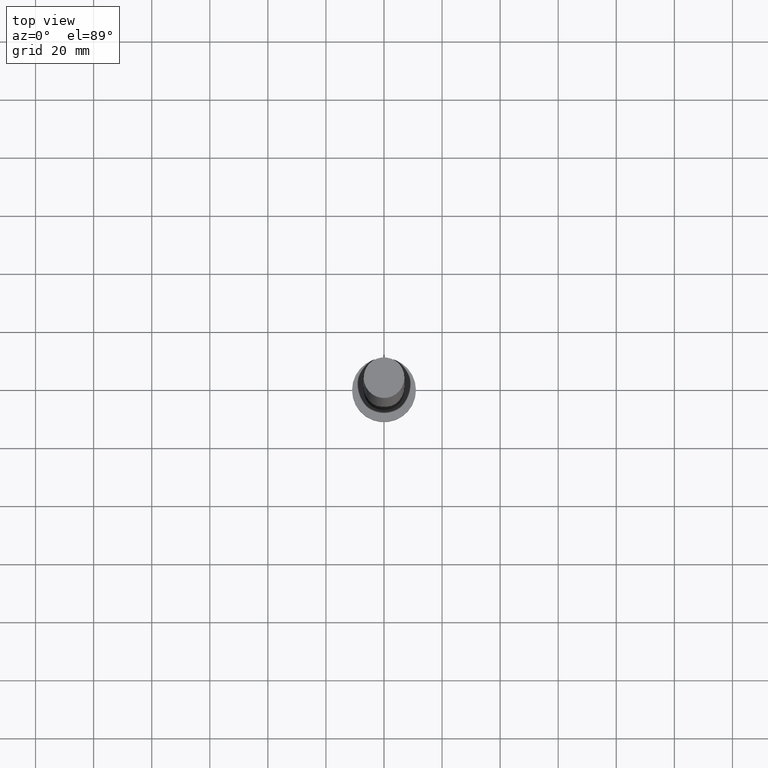
[diagram: clean part render]
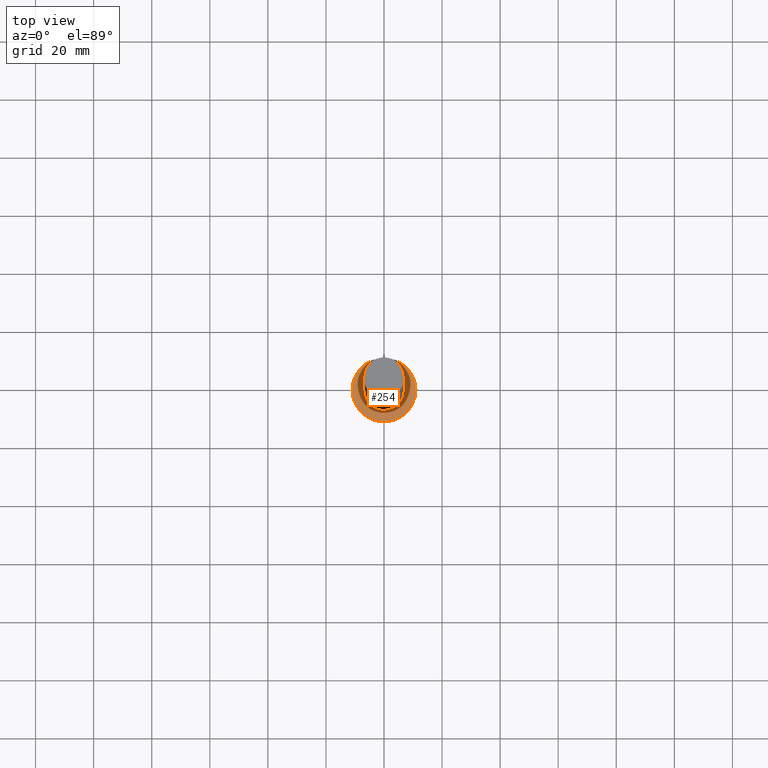
[diagram: same view with one face highlighted and labeled with its STEP entity id]
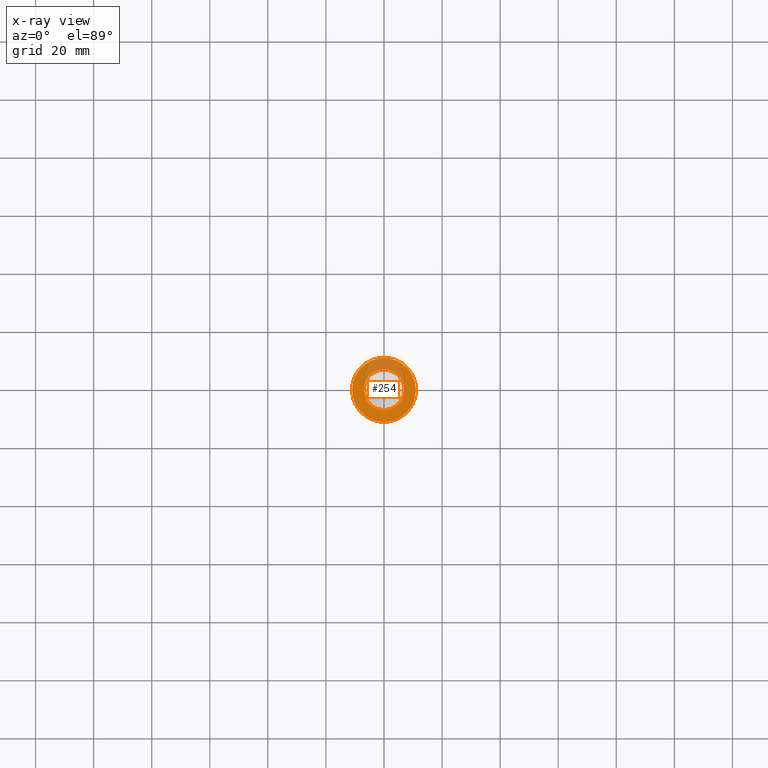
[diagram: x-ray of the same camera — body ghosted, the highlighted face saturated]
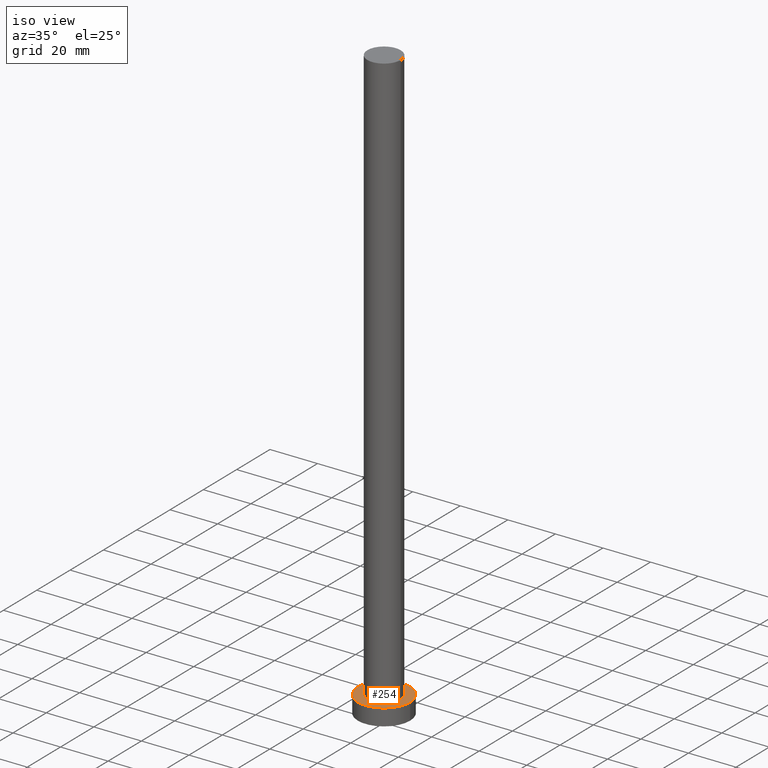
[diagram: same view with one face highlighted and labeled with its STEP entity id]
A machine part, top view. The second image highlights one B-rep face of the part: STEP entity #254.
The next image is the same camera in x-ray: the body ghosted, the highlighted face saturated — about 26% of this face is hidden behind the body in this view.
A second angle (iso view) of the same face is appended — the face is thin or edge-on in the first view.
In plain terms, the highlighted planar face has unit normal (0, 0, 1).
Its self-contained STEP definition (entity closure, byte-faithful):
#8 = CARTESIAN_POINT ( 'NONE',  ( -7.000000000000000000, 0.000000000000000000, 7.000000000000000000 ) ) ;
#9 = CARTESIAN_POINT ( 'NONE',  ( 0.000000000000000000, 0.000000000000000000, 7.000000000000000000 ) ) ;
#10 = DIRECTION ( 'NONE',  ( 0.000000000000000000, 0.000000000000000000, 1.000000000000000000 ) ) ;
#16 = PLANE ( 'NONE',  #56 ) ;
#24 = ORIENTED_EDGE ( 'NONE', *, *, #27, .F. ) ;
#27 = EDGE_CURVE ( 'NONE', #142, #210, #53, .T. ) ;
#28 = CARTESIAN_POINT ( 'NONE',  ( -11.00000000000000000, 0.000000000000000000, 7.000000000000000000 ) ) ;
#31 = AXIS2_PLACEMENT_3D ( 'NONE', #9, #160, #143 ) ;
#53 = CIRCLE ( 'NONE', #234, 7.000000000000000000 ) ;
#56 = AXIS2_PLACEMENT_3D ( 'NONE', #213, #243, #97 ) ;
#61 = VERTEX_POINT ( 'NONE', #250 ) ;
#63 = CARTESIAN_POINT ( 'NONE',  ( 0.000000000000000000, 0.000000000000000000, 7.000000000000000000 ) ) ;
#70 = ORIENTED_EDGE ( 'NONE', *, *, #92, .T. ) ;
#74 = EDGE_CURVE ( 'NONE', #210, #142, #96, .T. ) ;
#77 = FACE_BOUND ( 'NONE', #244, .T. ) ;
#92 = EDGE_CURVE ( 'NONE', #61, #205, #140, .T. ) ;
#96 = CIRCLE ( 'NONE', #31, 7.000000000000000000 ) ;
#97 = DIRECTION ( 'NONE',  ( 1.000000000000000000, 0.000000000000000000, -0.000000000000000000 ) ) ;
#111 = DIRECTION ( 'NONE',  ( 1.000000000000000000, 0.000000000000000000, 0.000000000000000000 ) ) ;
#120 = ORIENTED_EDGE ( 'NONE', *, *, #217, .T. ) ;
#125 = DIRECTION ( 'NONE',  ( 1.000000000000000000, 0.000000000000000000, 0.000000000000000000 ) ) ;
#140 = CIRCLE ( 'NONE', #173, 11.00000000000000000 ) ;
#142 = VERTEX_POINT ( 'NONE', #156 ) ;
#143 = DIRECTION ( 'NONE',  ( 1.000000000000000000, 0.000000000000000000, 0.000000000000000000 ) ) ;
#145 = DIRECTION ( 'NONE',  ( 1.000000000000000000, 0.000000000000000000, 0.000000000000000000 ) ) ;
#156 = CARTESIAN_POINT ( 'NONE',  ( 7.000000000000000000, 8.572527594031473190E-16, 7.000000000000000000 ) ) ;
#160 = DIRECTION ( 'NONE',  ( 0.000000000000000000, 0.000000000000000000, 1.000000000000000000 ) ) ;
#173 = AXIS2_PLACEMENT_3D ( 'NONE', #188, #231, #111 ) ;
#174 = AXIS2_PLACEMENT_3D ( 'NONE', #180, #10, #125 ) ;
#180 = CARTESIAN_POINT ( 'NONE',  ( 0.000000000000000000, 0.000000000000000000, 7.000000000000000000 ) ) ;
#184 = DIRECTION ( 'NONE',  ( 0.000000000000000000, 0.000000000000000000, 1.000000000000000000 ) ) ;
#188 = CARTESIAN_POINT ( 'NONE',  ( 0.000000000000000000, 0.000000000000000000, 7.000000000000000000 ) ) ;
#205 = VERTEX_POINT ( 'NONE', #28 ) ;
#210 = VERTEX_POINT ( 'NONE', #8 ) ;
#213 = CARTESIAN_POINT ( 'NONE',  ( 0.000000000000000000, 0.000000000000000000, 7.000000000000000000 ) ) ;
#217 = EDGE_CURVE ( 'NONE', #205, #61, #235, .T. ) ;
#223 = EDGE_LOOP ( 'NONE', ( #120, #70 ) ) ;
#231 = DIRECTION ( 'NONE',  ( 0.000000000000000000, 0.000000000000000000, 1.000000000000000000 ) ) ;
#234 = AXIS2_PLACEMENT_3D ( 'NONE', #63, #184, #145 ) ;
#235 = CIRCLE ( 'NONE', #174, 11.00000000000000000 ) ;
#243 = DIRECTION ( 'NONE',  ( 0.000000000000000000, 0.000000000000000000, 1.000000000000000000 ) ) ;
#244 = EDGE_LOOP ( 'NONE', ( #251, #24 ) ) ;
#245 = FACE_OUTER_BOUND ( 'NONE', #223, .T. ) ;
#250 = CARTESIAN_POINT ( 'NONE',  ( 11.00000000000000000, 1.347111479062088405E-15, 7.000000000000000000 ) ) ;
#251 = ORIENTED_EDGE ( 'NONE', *, *, #74, .F. ) ;
#254 = ADVANCED_FACE ( 'NONE', ( #77, #245 ), #16, .T. ) ;